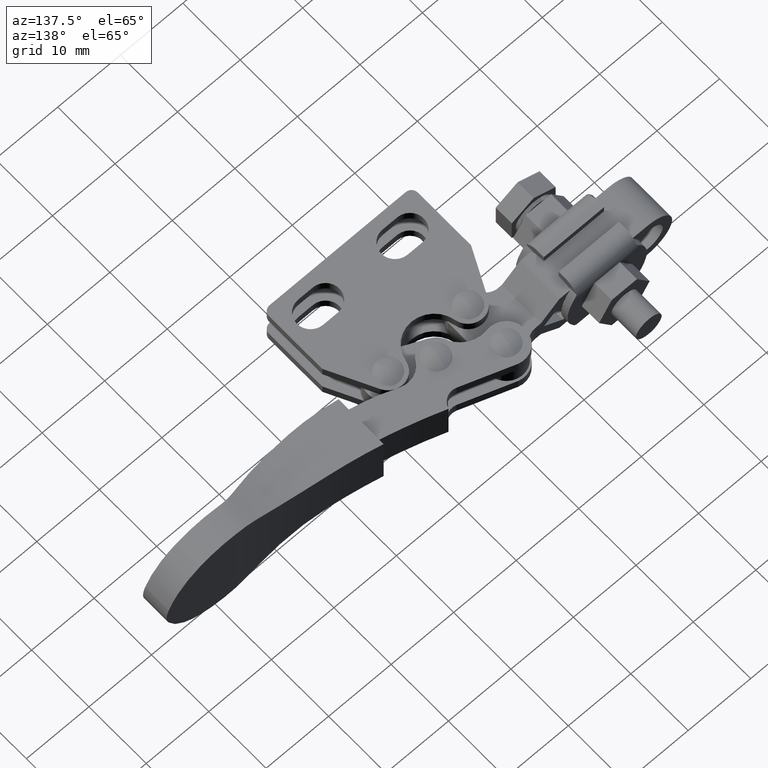
[diagram: clean part render]
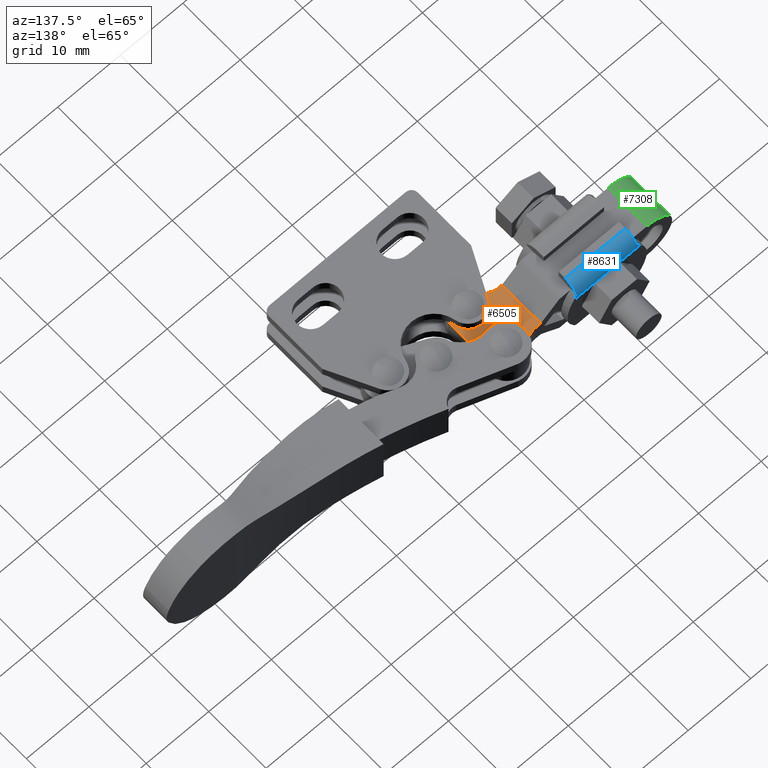
[diagram: same view with three faces highlighted in distinct colors, each labeled with its STEP entity id]
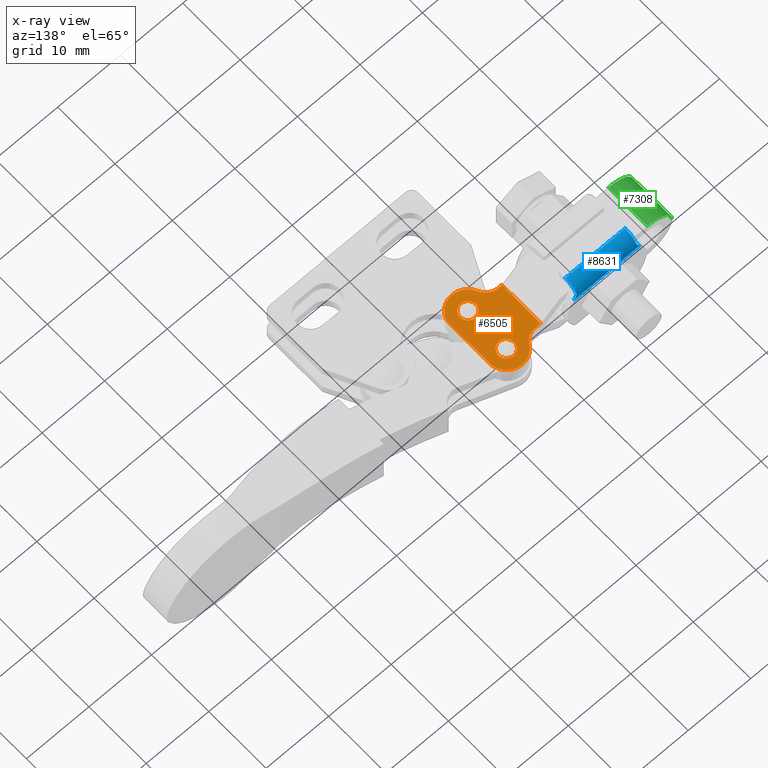
[diagram: x-ray of the same camera — body ghosted, the three highlighted faces saturated]
A machine part, auxiliary view with three faces highlighted in distinct colors.
The next image is the same camera in x-ray (body ghosted, the three faces saturated) — at least one of them is partly hidden behind the body in this view.
Their STEP definitions:

[orange] entity #6505 — the highlighted planar face has unit normal (-0, 0, -1).
#69 = EDGE_LOOP ( 'NONE', ( #2433, #6770 ) ) ;
#106 = EDGE_CURVE ( 'NONE', #4253, #758, #9857, .T. ) ;
#138 = PLANE ( 'NONE',  #1914 ) ;
#206 = AXIS2_PLACEMENT_3D ( 'NONE', #4319, #9710, #5107 ) ;
#225 = DIRECTION ( 'NONE',  ( 1.000000000000000000, 0.0000000000000000000, 0.0000000000000000000 ) ) ;
#267 = CARTESIAN_POINT ( 'NONE',  ( 0.2576751411780021600, 22.77000000000299500, 1.500000000000002000 ) ) ;
#285 = VERTEX_POINT ( 'NONE', #9954 ) ;
#462 = EDGE_LOOP ( 'NONE', ( #876, #1132 ) ) ;
#672 = DIRECTION ( 'NONE',  ( 1.000000000000000000, 0.0000000000000000000, 0.0000000000000000000 ) ) ;
#692 = CARTESIAN_POINT ( 'NONE',  ( 8.257675141178008700, 11.60000000000008800, 1.499999999999999600 ) ) ;
#758 = VERTEX_POINT ( 'NONE', #7214 ) ;
#766 = VERTEX_POINT ( 'NONE', #5119 ) ;
#876 = ORIENTED_EDGE ( 'NONE', *, *, #106, .F. ) ;
#968 = VERTEX_POINT ( 'NONE', #9240 ) ;
#1067 = EDGE_CURVE ( 'NONE', #4977, #7493, #1263, .T. ) ;
#1132 = ORIENTED_EDGE ( 'NONE', *, *, #7417, .F. ) ;
#1263 = LINE ( 'NONE', #1735, #1494 ) ;
#1338 = AXIS2_PLACEMENT_3D ( 'NONE', #3719, #9096, #4477 ) ;
#1411 = CIRCLE ( 'NONE', #5905, 2.304672240320576800 ) ;
#1456 = DIRECTION ( 'NONE',  ( 2.657379524761970900E-016, 1.000000000000000000, 1.456761602006292800E-016 ) ) ;
#1494 = VECTOR ( 'NONE', #7899, 1000.000000000000000 ) ;
#1499 = EDGE_CURVE ( 'NONE', #7977, #285, #7380, .T. ) ;
#1552 = LINE ( 'NONE', #6717, #6370 ) ;
#1664 = CARTESIAN_POINT ( 'NONE',  ( 0.2576751411779987200, 11.60000000000009000, 1.500000000000000000 ) ) ;
#1673 = DIRECTION ( 'NONE',  ( -6.245004513516505500E-017, 1.456761602006292800E-016, -1.000000000000000000 ) ) ;
#1698 = CARTESIAN_POINT ( 'NONE',  ( 6.750750043949927300, 22.45000000000008100, 1.499999999999998700 ) ) ;
#1720 = CIRCLE ( 'NONE', #206, 1.250000000000000200 ) ;
#1735 = CARTESIAN_POINT ( 'NONE',  ( 0.2576751411780021600, 22.77000000000299500, 1.500000000000001600 ) ) ;
#1784 = DIRECTION ( 'NONE',  ( -6.245004513516505500E-017, 1.577243110423287600E-016, -1.000000000000000000 ) ) ;
#1834 = EDGE_CURVE ( 'NONE', #1890, #1855, #9063, .T. ) ;
#1854 = ORIENTED_EDGE ( 'NONE', *, *, #2347, .F. ) ;
#1855 = VERTEX_POINT ( 'NONE', #4891 ) ;
#1890 = VERTEX_POINT ( 'NONE', #5673 ) ;
#1914 = AXIS2_PLACEMENT_3D ( 'NONE', #3189, #1673, #7055 ) ;
#1953 = VERTEX_POINT ( 'NONE', #5752 ) ;
#1975 = ORIENTED_EDGE ( 'NONE', *, *, #1834, .F. ) ;
#2019 = EDGE_CURVE ( 'NONE', #766, #1953, #1720, .T. ) ;
#2148 = CARTESIAN_POINT ( 'NONE',  ( 8.257675141178008700, 15.26075158837862000, 1.500000000000000000 ) ) ;
#2268 = DIRECTION ( 'NONE',  ( -1.000000000000000000, -8.919918240958635800E-017, 6.255271215723516000E-017 ) ) ;
#2280 = CIRCLE ( 'NONE', #8522, 2.255477282988416200 ) ;
#2347 = EDGE_CURVE ( 'NONE', #9949, #4977, #3407, .T. ) ;
#2433 = ORIENTED_EDGE ( 'NONE', *, *, #6329, .F. ) ;
#2590 = CIRCLE ( 'NONE', #1338, 1.250000000000000200 ) ;
#2626 = CARTESIAN_POINT ( 'NONE',  ( 1.184547345964594800, 25.02534941786939300, 1.500000000000002000 ) ) ;
#2638 = AXIS2_PLACEMENT_3D ( 'NONE', #2626, #7991, #3400 ) ;
#2688 = VERTEX_POINT ( 'NONE', #2148 ) ;
#2698 = DIRECTION ( 'NONE',  ( 6.245004513516505500E-017, -1.577243110423287600E-016, 1.000000000000000000 ) ) ;
#2960 = AXIS2_PLACEMENT_3D ( 'NONE', #6238, #4035, #225 ) ;
#3189 = CARTESIAN_POINT ( 'NONE',  ( 0.2576751411779987200, 11.60000000000009000, 1.500000000000000000 ) ) ;
#3269 = AXIS2_PLACEMENT_3D ( 'NONE', #9068, #4451, #9835 ) ;
#3277 = DIRECTION ( 'NONE',  ( 6.245004513516505500E-017, -1.577243110423287600E-016, 1.000000000000000000 ) ) ;
#3305 = ORIENTED_EDGE ( 'NONE', *, *, #5304, .T. ) ;
#3400 = DIRECTION ( 'NONE',  ( 3.845579578789569200E-015, 1.000000000000000000, 1.922789789394784500E-016 ) ) ;
#3407 = LINE ( 'NONE', #1664, #7234 ) ;
#3414 = CIRCLE ( 'NONE', #2638, 2.255477282988416200 ) ;
#3719 = CARTESIAN_POINT ( 'NONE',  ( 5.500750043949927300, 22.45000000000008100, 1.499999999999998700 ) ) ;
#3816 = CIRCLE ( 'NONE', #4167, 1.250000000000000200 ) ;
#4035 = DIRECTION ( 'NONE',  ( 0.0000000000000000000, 0.0000000000000000000, 1.000000000000000000 ) ) ;
#4167 = AXIS2_PLACEMENT_3D ( 'NONE', #9876, #5285, #672 ) ;
#4171 = FACE_OUTER_BOUND ( 'NONE', #5409, .T. ) ;
#4253 = VERTEX_POINT ( 'NONE', #1698 ) ;
#4256 = ORIENTED_EDGE ( 'NONE', *, *, #9188, .F. ) ;
#4319 = CARTESIAN_POINT ( 'NONE',  ( 5.500750043949925500, 15.75000000000009800, 1.499999999999998700 ) ) ;
#4431 = CARTESIAN_POINT ( 'NONE',  ( 0.2576751411780021600, 15.97000000000299900, 1.500000000000002000 ) ) ;
#4451 = DIRECTION ( 'NONE',  ( -6.245004513516505500E-017, 1.577243110423287600E-016, -1.000000000000000000 ) ) ;
#4477 = DIRECTION ( 'NONE',  ( 1.000000000000000000, 0.0000000000000000000, 0.0000000000000000000 ) ) ;
#4816 = DIRECTION ( 'NONE',  ( -6.245004513516505500E-017, 1.577243110423287600E-016, -1.000000000000000000 ) ) ;
#4891 = CARTESIAN_POINT ( 'NONE',  ( 8.257675141178010500, 22.93924841162155900, 1.500000000000001300 ) ) ;
#4977 = VERTEX_POINT ( 'NONE', #267 ) ;
#5064 = VERTEX_POINT ( 'NONE', #8784 ) ;
#5106 = ORIENTED_EDGE ( 'NONE', *, *, #6887, .F. ) ;
#5107 = DIRECTION ( 'NONE',  ( 1.000000000000000000, 0.0000000000000000000, 0.0000000000000000000 ) ) ;
#5119 = CARTESIAN_POINT ( 'NONE',  ( 4.250750043949925500, 15.75000000000009800, 1.499999999999998700 ) ) ;
#5134 = CIRCLE ( 'NONE', #3269, 2.800000000000038500 ) ;
#5285 = DIRECTION ( 'NONE',  ( 0.0000000000000000000, 0.0000000000000000000, 1.000000000000000000 ) ) ;
#5304 = EDGE_CURVE ( 'NONE', #2688, #1855, #9594, .T. ) ;
#5324 = CARTESIAN_POINT ( 'NONE',  ( 1.160531155457868100, 22.77000000000299500, 1.500000000000001600 ) ) ;
#5409 = EDGE_LOOP ( 'NONE', ( #7252, #1854, #5944, #8444, #8700, #5106, #3305, #1975, #6061, #4256 ) ) ;
#5528 = DIRECTION ( 'NONE',  ( 2.657379524761970900E-016, 1.000000000000000000, 1.456761602006292800E-016 ) ) ;
#5673 = CARTESIAN_POINT ( 'NONE',  ( 2.968955692330622400, 23.64583333333247200, 1.500000000000001800 ) ) ;
#5752 = CARTESIAN_POINT ( 'NONE',  ( 6.750750043949926400, 15.75000000000009800, 1.499999999999998700 ) ) ;
#5905 = AXIS2_PLACEMENT_3D ( 'NONE', #7297, #2698, #8053 ) ;
#5944 = ORIENTED_EDGE ( 'NONE', *, *, #9446, .F. ) ;
#6061 = ORIENTED_EDGE ( 'NONE', *, *, #8334, .F. ) ;
#6125 = EDGE_CURVE ( 'NONE', #285, #5064, #1411, .T. ) ;
#6238 = CARTESIAN_POINT ( 'NONE',  ( 5.500750043949927300, 22.45000000000008100, 1.499999999999998700 ) ) ;
#6245 = CARTESIAN_POINT ( 'NONE',  ( 5.500750043949925500, 15.75000000000009800, 1.500000000000000400 ) ) ;
#6329 = EDGE_CURVE ( 'NONE', #1953, #766, #3816, .T. ) ;
#6370 = VECTOR ( 'NONE', #2268, 1000.000000000000000 ) ;
#6372 = CARTESIAN_POINT ( 'NONE',  ( 5.500750043949927300, 22.45000000000008100, 1.500000000000001300 ) ) ;
#6505 = ADVANCED_FACE ( 'NONE', ( #8011, #8248, #4171 ), #138, .F. ) ;
#6717 = CARTESIAN_POINT ( 'NONE',  ( 0.2576751411779987200, 15.97000000000299900, 1.500000000000000700 ) ) ;
#6750 = CARTESIAN_POINT ( 'NONE',  ( 5.500750043949924600, 12.95000000000005800, 1.500000000000000000 ) ) ;
#6770 = ORIENTED_EDGE ( 'NONE', *, *, #2019, .F. ) ;
#6887 = EDGE_CURVE ( 'NONE', #2688, #7977, #5134, .T. ) ;
#6947 = AXIS2_PLACEMENT_3D ( 'NONE', #6245, #4816, #9476 ) ;
#7055 = DIRECTION ( 'NONE',  ( 2.657379524761970900E-016, 1.000000000000000000, 1.456761602006292500E-016 ) ) ;
#7151 = DIRECTION ( 'NONE',  ( 3.097720492815684300E-016, 1.000000000000000000, 1.548860246407842100E-016 ) ) ;
#7214 = CARTESIAN_POINT ( 'NONE',  ( 4.250750043949927300, 22.45000000000008100, 1.499999999999998700 ) ) ;
#7234 = VECTOR ( 'NONE', #5528, 1000.000000000000000 ) ;
#7252 = ORIENTED_EDGE ( 'NONE', *, *, #1067, .F. ) ;
#7297 = CARTESIAN_POINT ( 'NONE',  ( 0.8329478437112160000, 13.68872769947213700, 1.500000000000000200 ) ) ;
#7299 = VECTOR ( 'NONE', #1456, 1000.000000000000000 ) ;
#7380 = CIRCLE ( 'NONE', #6947, 2.800000000000038500 ) ;
#7417 = EDGE_CURVE ( 'NONE', #758, #4253, #2590, .T. ) ;
#7493 = VERTEX_POINT ( 'NONE', #5324 ) ;
#7866 = CARTESIAN_POINT ( 'NONE',  ( 1.184547345964594800, 25.02534941786939300, 1.500000000000002000 ) ) ;
#7899 = DIRECTION ( 'NONE',  ( 1.000000000000000000, -1.763996934633915200E-016, -6.255271215723519700E-017 ) ) ;
#7977 = VERTEX_POINT ( 'NONE', #6750 ) ;
#7991 = DIRECTION ( 'NONE',  ( 6.245004513516505500E-017, -1.577243110423287600E-016, 1.000000000000000000 ) ) ;
#8011 = FACE_BOUND ( 'NONE', #69, .T. ) ;
#8053 = DIRECTION ( 'NONE',  ( 7.385854617511550000E-015, 1.000000000000000000, 1.881746399365999800E-016 ) ) ;
#8248 = FACE_BOUND ( 'NONE', #462, .T. ) ;
#8334 = EDGE_CURVE ( 'NONE', #968, #1890, #3414, .T. ) ;
#8444 = ORIENTED_EDGE ( 'NONE', *, *, #6125, .F. ) ;
#8522 = AXIS2_PLACEMENT_3D ( 'NONE', #7866, #3277, #8643 ) ;
#8643 = DIRECTION ( 'NONE',  ( 1.317111005735427500E-013, 1.000000000000000000, 1.922789789394784500E-016 ) ) ;
#8700 = ORIENTED_EDGE ( 'NONE', *, *, #1499, .F. ) ;
#8784 = CARTESIAN_POINT ( 'NONE',  ( 1.160531155457840400, 15.97000000000299900, 1.500000000000000700 ) ) ;
#8818 = AXIS2_PLACEMENT_3D ( 'NONE', #6372, #1784, #7151 ) ;
#9063 = CIRCLE ( 'NONE', #8818, 2.800000000000038500 ) ;
#9068 = CARTESIAN_POINT ( 'NONE',  ( 5.500750043949925500, 15.75000000000009800, 1.500000000000000400 ) ) ;
#9096 = DIRECTION ( 'NONE',  ( 0.0000000000000000000, 0.0000000000000000000, 1.000000000000000000 ) ) ;
#9188 = EDGE_CURVE ( 'NONE', #7493, #968, #2280, .T. ) ;
#9240 = CARTESIAN_POINT ( 'NONE',  ( 1.184547345964594800, 22.76987213488097700, 1.500000000000001600 ) ) ;
#9446 = EDGE_CURVE ( 'NONE', #5064, #9949, #1552, .T. ) ;
#9476 = DIRECTION ( 'NONE',  ( 3.097720492815684300E-016, 1.000000000000000000, 1.548860246407842100E-016 ) ) ;
#9594 = LINE ( 'NONE', #692, #7299 ) ;
#9710 = DIRECTION ( 'NONE',  ( 0.0000000000000000000, 0.0000000000000000000, 1.000000000000000000 ) ) ;
#9835 = DIRECTION ( 'NONE',  ( 3.097720492815684300E-016, 1.000000000000000000, 1.548860246407842100E-016 ) ) ;
#9857 = CIRCLE ( 'NONE', #2960, 1.250000000000000200 ) ;
#9876 = CARTESIAN_POINT ( 'NONE',  ( 5.500750043949925500, 15.75000000000009800, 1.499999999999998700 ) ) ;
#9949 = VERTEX_POINT ( 'NONE', #4431 ) ;
#9954 = CARTESIAN_POINT ( 'NONE',  ( 2.968955692330629100, 14.55416666666771500, 1.500000000000000400 ) ) ;

[blue] entity #8631 — the highlighted cylindrical surface (edge-blend (fillet) strip) has radius 2.1 mm, axis along (1, -0, -0).
#16 = CARTESIAN_POINT ( 'NONE',  ( -4.344662981189012300, 23.83297400491106200, 3.946928966755632700 ) ) ;
#29 = CARTESIAN_POINT ( 'NONE',  ( -4.520006648394898200, 21.77000000000293400, 3.499999999999186900 ) ) ;
#430 = CARTESIAN_POINT ( 'NONE',  ( -14.13249852095309600, 21.77000000000293400, 5.599999999999169200 ) ) ;
#474 = DIRECTION ( 'NONE',  ( 0.0000000000000000000, 0.0000000000000000000, -1.000000000000000000 ) ) ;
#777 = DIRECTION ( 'NONE',  ( 0.0000000000000000000, 0.0000000000000000000, -1.000000000000000000 ) ) ;
#787 = EDGE_CURVE ( 'NONE', #5410, #6781, #2717, .T. ) ;
#1053 = CARTESIAN_POINT ( 'NONE',  ( -14.13249852095309900, 23.76687255477450800, 4.149999999999167200 ) ) ;
#1211 = CIRCLE ( 'NONE', #6004, 2.099999999999982300 ) ;
#1582 = FACE_OUTER_BOUND ( 'NONE', #6052, .T. ) ;
#1757 = CARTESIAN_POINT ( 'NONE',  ( -4.027903785283811500, 23.87000000000291800, 3.499999999999174900 ) ) ;
#1983 = EDGE_CURVE ( 'NONE', #6781, #3293, #9899, .T. ) ;
#2068 = DIRECTION ( 'NONE',  ( 1.000000000000000000, -1.745565497701661800E-017, -8.316539286046234300E-017 ) ) ;
#2212 = CARTESIAN_POINT ( 'NONE',  ( -4.180402208307841100, 23.87000000000292100, 3.730854239010087200 ) ) ;
#2336 = EDGE_CURVE ( 'NONE', #3293, #8151, #9772, .T. ) ;
#2400 = ORIENTED_EDGE ( 'NONE', *, *, #3196, .F. ) ;
#2594 = CARTESIAN_POINT ( 'NONE',  ( -14.62460138406418300, 23.87000000000291800, 3.499999999999178900 ) ) ;
#2717 = B_SPLINE_CURVE_WITH_KNOTS ( 'NONE', 3,
 ( #2594, #7188, #3841, #1053 ),
 .UNSPECIFIED., .F., .F.,
 ( 4, 4 ),
 ( 1.077240930865404100E-017, 0.0008217666930713766900 ),
 .UNSPECIFIED. ) ;
#2904 = ORIENTED_EDGE ( 'NONE', *, *, #8492, .F. ) ;
#2984 = VERTEX_POINT ( 'NONE', #1757 ) ;
#3005 = EDGE_CURVE ( 'NONE', #8151, #8694, #1211, .T. ) ;
#3067 = CARTESIAN_POINT ( 'NONE',  ( -4.027903785283811500, 23.87000000000291800, 3.499999999999174900 ) ) ;
#3196 = EDGE_CURVE ( 'NONE', #7115, #8196, #9244, .T. ) ;
#3291 = CARTESIAN_POINT ( 'NONE',  ( -4.520006648394898200, 23.76687255477450800, 4.149999999999167200 ) ) ;
#3293 = VERTEX_POINT ( 'NONE', #430 ) ;
#3506 = ORIENTED_EDGE ( 'NONE', *, *, #9151, .F. ) ;
#3522 = EDGE_CURVE ( 'NONE', #2984, #8694, #5558, .T. ) ;
#3841 = CARTESIAN_POINT ( 'NONE',  ( -14.30784218815897700, 23.83297400491105800, 3.946928966755645500 ) ) ;
#4110 = CARTESIAN_POINT ( 'NONE',  ( -11.34697852683769300, 23.87000000000291400, 3.499999999999213500 ) ) ;
#4358 = CARTESIAN_POINT ( 'NONE',  ( -9.326252584673998300, 23.87000000000291800, 3.499999999999187300 ) ) ;
#4688 = CARTESIAN_POINT ( 'NONE',  ( -14.62460138406418300, 23.87000000000291800, 3.499999999999178900 ) ) ;
#4846 = ORIENTED_EDGE ( 'NONE', *, *, #1983, .T. ) ;
#4861 = VECTOR ( 'NONE', #2068, 1000.000000000000000 ) ;
#5071 = DIRECTION ( 'NONE',  ( 1.000000000000000000, -1.745565497701661800E-017, -8.316539286046234300E-017 ) ) ;
#5077 = ORIENTED_EDGE ( 'NONE', *, *, #787, .T. ) ;
#5378 = CARTESIAN_POINT ( 'NONE',  ( -4.520006648394898200, 23.76687255477450800, 4.149999999999167200 ) ) ;
#5388 = DIRECTION ( 'NONE',  ( -1.000000000000000000, 1.745565497701661800E-017, 8.316539286046234300E-017 ) ) ;
#5410 = VERTEX_POINT ( 'NONE', #4688 ) ;
#5558 = B_SPLINE_CURVE_WITH_KNOTS ( 'NONE', 3,
 ( #3067, #2212, #16, #5378 ),
 .UNSPECIFIED., .F., .F.,
 ( 4, 4 ),
 ( 1.266615446772325900E-017, 0.0008217666930713841700 ),
 .UNSPECIFIED. ) ;
#5916 = ORIENTED_EDGE ( 'NONE', *, *, #3005, .T. ) ;
#6004 = AXIS2_PLACEMENT_3D ( 'NONE', #29, #5388, #777 ) ;
#6052 = EDGE_LOOP ( 'NONE', ( #3506, #5077, #4846, #6385, #5916, #9518, #2904, #2400 ) ) ;
#6113 = VECTOR ( 'NONE', #8715, 1000.000000000000000 ) ;
#6385 = ORIENTED_EDGE ( 'NONE', *, *, #2336, .T. ) ;
#6403 = CARTESIAN_POINT ( 'NONE',  ( -11.34697852683769300, 23.87000000000291800, 3.499999999999187300 ) ) ;
#6596 = CARTESIAN_POINT ( 'NONE',  ( -14.13249852095309900, 23.76687255477450800, 4.149999999999167200 ) ) ;
#6611 = LINE ( 'NONE', #7040, #8412 ) ;
#6781 = VERTEX_POINT ( 'NONE', #6596 ) ;
#7040 = CARTESIAN_POINT ( 'NONE',  ( -9.326252584673998300, 23.87000000000291800, 3.499999999999187300 ) ) ;
#7043 = CARTESIAN_POINT ( 'NONE',  ( -9.326252584673998300, 21.77000000000293400, 5.599999999999169200 ) ) ;
#7115 = VERTEX_POINT ( 'NONE', #6403 ) ;
#7122 = LINE ( 'NONE', #4358, #4861 ) ;
#7188 = CARTESIAN_POINT ( 'NONE',  ( -14.47210296104015200, 23.87000000000292100, 3.730854239010092100 ) ) ;
#7480 = VECTOR ( 'NONE', #7796, 1000.000000000000000 ) ;
#7562 = AXIS2_PLACEMENT_3D ( 'NONE', #9164, #8383, #9942 ) ;
#7793 = DIRECTION ( 'NONE',  ( 1.000000000000000000, -1.745565497701661800E-017, -8.316539286046234300E-017 ) ) ;
#7796 = DIRECTION ( 'NONE',  ( 1.000000000000000000, -1.745565497701661800E-017, -8.316539286046234300E-017 ) ) ;
#8151 = VERTEX_POINT ( 'NONE', #8494 ) ;
#8196 = VERTEX_POINT ( 'NONE', #8551 ) ;
#8383 = DIRECTION ( 'NONE',  ( 1.000000000000000000, -1.745565497701661800E-017, -8.316539286046234300E-017 ) ) ;
#8412 = VECTOR ( 'NONE', #7793, 1000.000000000000000 ) ;
#8492 = EDGE_CURVE ( 'NONE', #8196, #2984, #7122, .T. ) ;
#8494 = CARTESIAN_POINT ( 'NONE',  ( -4.520006648394898200, 21.77000000000293400, 5.599999999999169200 ) ) ;
#8551 = CARTESIAN_POINT ( 'NONE',  ( -7.305526642510289800, 23.87000000000291800, 3.499999999999187300 ) ) ;
#8631 = ADVANCED_FACE ( 'NONE', ( #1582 ), #9046, .T. ) ;
#8694 = VERTEX_POINT ( 'NONE', #3291 ) ;
#8715 = DIRECTION ( 'NONE',  ( 1.000000000000000000, 2.244298497044993700E-016, 4.291978035195194000E-016 ) ) ;
#9046 = CYLINDRICAL_SURFACE ( 'NONE', #7562, 2.099999999999982300 ) ;
#9144 = AXIS2_PLACEMENT_3D ( 'NONE', #9678, #5071, #474 ) ;
#9151 = EDGE_CURVE ( 'NONE', #5410, #7115, #6611, .T. ) ;
#9164 = CARTESIAN_POINT ( 'NONE',  ( -14.68818156965691600, 21.77000000000293400, 3.499999999999187800 ) ) ;
#9244 = LINE ( 'NONE', #4110, #6113 ) ;
#9518 = ORIENTED_EDGE ( 'NONE', *, *, #3522, .F. ) ;
#9678 = CARTESIAN_POINT ( 'NONE',  ( -14.13249852095309900, 21.77000000000293400, 3.499999999999187800 ) ) ;
#9772 = LINE ( 'NONE', #7043, #7480 ) ;
#9899 = CIRCLE ( 'NONE', #9144, 2.099999999999982300 ) ;
#9942 = DIRECTION ( 'NONE',  ( 0.0000000000000000000, 0.0000000000000000000, -1.000000000000000000 ) ) ;

[green] entity #7308 — the highlighted cylindrical surface (edge-blend (fillet) strip) has radius 4 mm, axis along (0, 1, 0).
#325 = AXIS2_PLACEMENT_3D ( 'NONE', #6623, #7416, #2808 ) ;
#1023 = LINE ( 'NONE', #7912, #2580 ) ;
#1099 = EDGE_CURVE ( 'NONE', #5796, #6542, #3064, .T. ) ;
#1133 = EDGE_CURVE ( 'NONE', #6542, #3443, #1023, .T. ) ;
#1384 = CARTESIAN_POINT ( 'NONE',  ( -20.74232485882199800, 22.77000000000299500, 2.896525748841405700E-014 ) ) ;
#1576 = ORIENTED_EDGE ( 'NONE', *, *, #1711, .F. ) ;
#1711 = EDGE_CURVE ( 'NONE', #3443, #8946, #1851, .T. ) ;
#1851 = CIRCLE ( 'NONE', #4187, 3.999999999999892500 ) ;
#2378 = DIRECTION ( 'NONE',  ( 2.657379524761970900E-016, 1.000000000000000000, 1.456761602006292800E-016 ) ) ;
#2580 = VECTOR ( 'NONE', #8668, 1000.000000000000000 ) ;
#2808 = DIRECTION ( 'NONE',  ( -1.000000000000000000, 0.0000000000000000000, 6.255271215723501200E-017 ) ) ;
#2851 = CARTESIAN_POINT ( 'NONE',  ( -16.74232485882210900, 11.60000000000009200, 3.999999999999920100 ) ) ;
#3064 = CIRCLE ( 'NONE', #9915, 3.999999999999892500 ) ;
#3320 = CYLINDRICAL_SURFACE ( 'NONE', #325, 3.999999999999892500 ) ;
#3398 = ORIENTED_EDGE ( 'NONE', *, *, #5209, .T. ) ;
#3443 = VERTEX_POINT ( 'NONE', #1384 ) ;
#3781 = CARTESIAN_POINT ( 'NONE',  ( -16.74232485882210500, 15.97000000000299600, 3.999999999999920100 ) ) ;
#4112 = EDGE_LOOP ( 'NONE', ( #8791, #9041, #3398, #1576 ) ) ;
#4187 = AXIS2_PLACEMENT_3D ( 'NONE', #6981, #2378, #7749 ) ;
#5209 = EDGE_CURVE ( 'NONE', #5796, #8946, #6696, .T. ) ;
#5796 = VERTEX_POINT ( 'NONE', #3781 ) ;
#6313 = CARTESIAN_POINT ( 'NONE',  ( -20.74232485882199800, 15.97000000000299600, 2.896525748841405700E-014 ) ) ;
#6542 = VERTEX_POINT ( 'NONE', #6313 ) ;
#6623 = CARTESIAN_POINT ( 'NONE',  ( -16.74232485882210900, 11.60000000000009200, 2.758314287502580600E-014 ) ) ;
#6696 = LINE ( 'NONE', #2851, #9223 ) ;
#6981 = CARTESIAN_POINT ( 'NONE',  ( -16.74232485882210500, 22.77000000000299500, 2.921034558446725600E-014 ) ) ;
#7308 = ADVANCED_FACE ( 'NONE', ( #7401 ), #3320, .T. ) ;
#7401 = FACE_OUTER_BOUND ( 'NONE', #4112, .T. ) ;
#7416 = DIRECTION ( 'NONE',  ( 2.657379524761970900E-016, 1.000000000000000000, 1.456761602006292800E-016 ) ) ;
#7514 = CARTESIAN_POINT ( 'NONE',  ( -16.74232485882210500, 22.77000000000299500, 3.999999999999921800 ) ) ;
#7680 = DIRECTION ( 'NONE',  ( 1.000000000000000000, 0.0000000000000000000, -6.255271215723578800E-017 ) ) ;
#7718 = CARTESIAN_POINT ( 'NONE',  ( -16.74232485882210500, 15.97000000000299600, 2.821974769510298500E-014 ) ) ;
#7737 = DIRECTION ( 'NONE',  ( -1.390766032191824800E-019, -1.000000000000000000, -1.456761602006293000E-016 ) ) ;
#7749 = DIRECTION ( 'NONE',  ( -1.000000000000000000, 0.0000000000000000000, 6.255271215723578800E-017 ) ) ;
#7912 = CARTESIAN_POINT ( 'NONE',  ( -20.74232485882200200, 11.60000000000009200, 2.783335372365474100E-014 ) ) ;
#8211 = DIRECTION ( 'NONE',  ( 2.657379524761970900E-016, 1.000000000000000000, 1.456761602006292800E-016 ) ) ;
#8668 = DIRECTION ( 'NONE',  ( 2.657379524761970900E-016, 1.000000000000000000, 1.456761602006292800E-016 ) ) ;
#8791 = ORIENTED_EDGE ( 'NONE', *, *, #1133, .F. ) ;
#8946 = VERTEX_POINT ( 'NONE', #7514 ) ;
#9041 = ORIENTED_EDGE ( 'NONE', *, *, #1099, .F. ) ;
#9223 = VECTOR ( 'NONE', #8211, 1000.000000000000000 ) ;
#9915 = AXIS2_PLACEMENT_3D ( 'NONE', #7718, #7737, #7680 ) ;